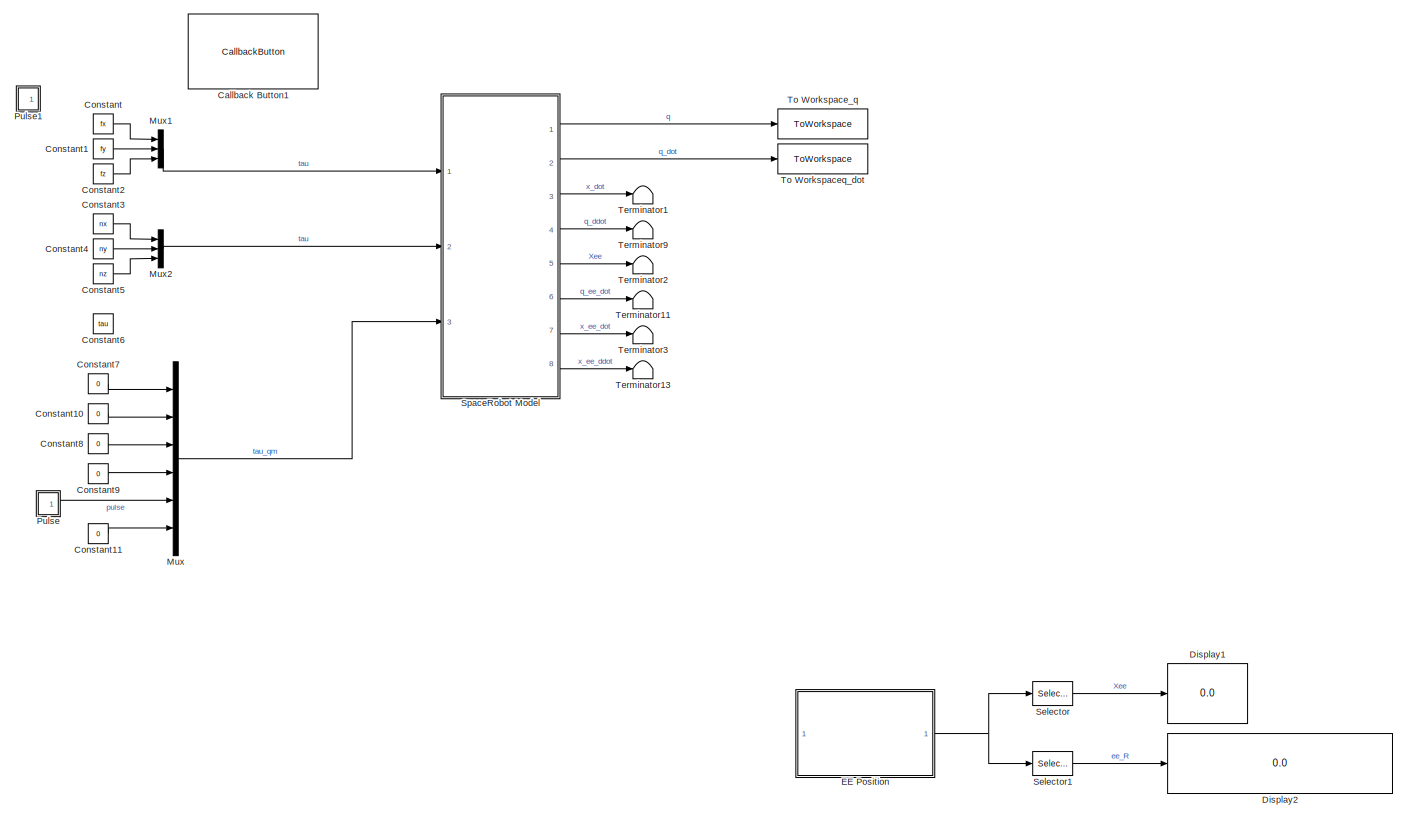
[diagram: root canvas - part 1/1, most of the canvas]
MODEL slx_0baa3ab157ea
KIND model
CONFIG AbsTol = auto
CONFIG EnableMultiTasking = off
CONFIG FixedStep = 0.01
CONFIG MaxStep = auto
CONFIG MinStep = auto
CONFIG RelTol = 1e-3
CONFIG SampleTimeConstraint = Unconstrained
CONFIG SolverName = ode45
CONFIG StartTime = 0.0
CONFIG StopTime = 10.0
BLOCK [CallbackButton] Callback Button1
  ButtonText = Animate results
  ClickFcn = close all\nsr.animate(out.q, 'fps', 17, 'rate', 1);
BLOCK [Constant] Constant
  Value = fx
BLOCK [Constant] Constant1
  Value = fy
BLOCK [Constant] Constant10
  Value = 0
BLOCK [Constant] Constant11
  Value = 0
BLOCK [Constant] Constant2
  Value = fz
BLOCK [Constant] Constant3
  Value = nx
BLOCK [Constant] Constant4
  Value = ny
BLOCK [Constant] Constant5
  Value = nz
BLOCK [Constant] Constant6
  Value = tau
BLOCK [Constant] Constant7
  Value = 0
BLOCK [Constant] Constant8
  Value = 0
BLOCK [Constant] Constant9
  Value = 0
BLOCK [Display] Display1
  Commented = on
  Decimation = 1
  Ports = [1]
BLOCK [Display] Display2
  Commented = on
  Decimation = 1
  Ports = [1]
BLOCK [SubSystem] EE Position
  Commented = on
  Ports = [1, 1]
  ReferencedSubsystem = GetTransform
  RequestExecContextInheritance = off
  SimulateUsing = Interpreted execution
  sourceBody = endeffector
  spaceRobot = sr
  targetBody = inertial
BLOCK [Mux] Mux
  DisplayOption = bar
  Inputs = 6
  Ports = [6, 1]
BLOCK [Mux] Mux1
  DisplayOption = bar
  Inputs = 3
  Ports = [3, 1]
BLOCK [Mux] Mux2
  DisplayOption = bar
  Inputs = 3
  Ports = [3, 1]
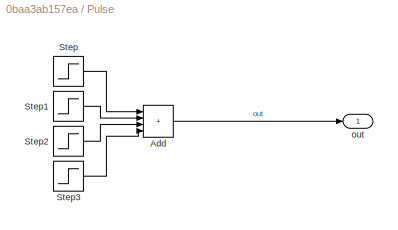
BLOCK [SubSystem] Pulse
  Ports = [0, 1]
  RequestExecContextInheritance = off
BLOCK [Sum] Pulse/Add
  IconShape = rectangular
  Inputs = ++++
  Ports = [4, 1]
BLOCK [Step] Pulse/Step
  After = f
  SampleTime = 0
  Time = t_start
BLOCK [Step] Pulse/Step1
  After = -f
  SampleTime = 0
  Time = t_start+dt
BLOCK [Step] Pulse/Step2
  After = -f
  SampleTime = 0
  Time = t_start+2*dt
BLOCK [Step] Pulse/Step3
  After = f
  SampleTime = 0
  Time = t_start+3*dt
BLOCK [Outport] Pulse/out
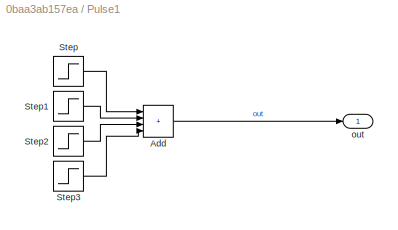
BLOCK [SubSystem] Pulse1
  Ports = [0, 1]
  RequestExecContextInheritance = off
BLOCK [Sum] Pulse1/Add
  IconShape = rectangular
  Inputs = ++++
  Ports = [4, 1]
BLOCK [Step] Pulse1/Step
  After = f
  SampleTime = 0
  Time = t_start
BLOCK [Step] Pulse1/Step1
  After = -f
  SampleTime = 0
  Time = t_start+dt
BLOCK [Step] Pulse1/Step2
  After = -f
  SampleTime = 0
  Time = t_start+2*dt
BLOCK [Step] Pulse1/Step3
  After = f
  SampleTime = 0
  Time = t_start+3*dt
BLOCK [Outport] Pulse1/out
BLOCK [Selector] Selector
  Commented = on
  IndexOptions = Index vector (dialog),Index vector (dialog)
  Indices = [1:3],4
  InputPortWidth = [4 4]
  NumberOfDimensions = 2
  OutputSizes = 1,1
  Ports = [1, 1]
BLOCK [Selector] Selector1
  Commented = on
  IndexOptions = Index vector (dialog),Index vector (dialog)
  Indices = [1:3],[1:3]
  InputPortWidth = [4 4]
  NumberOfDimensions = 2
  OutputSizes = 1,1
  Ports = [1, 1]
BLOCK [SubSystem] SpaceRobot Model
  Ports = [3, 8]
  ReferencedSubsystem = SpaceRobot_Model
  RequestExecContextInheritance = off
  jointCstr = off
  q_0 = q0
  q_dot_0 = q_dot_0
  spaceRobot = sr
BLOCK [Terminator] Terminator1
BLOCK [Terminator] Terminator11
BLOCK [Terminator] Terminator13
BLOCK [Terminator] Terminator2
BLOCK [Terminator] Terminator3
BLOCK [Terminator] Terminator9
BLOCK [ToWorkspace] To Workspace_q
  FixptAsFi = on
  MaxDataPoints = inf
  Ports = [1]
  SampleTime = -1
  SaveFormat = Timeseries
  VariableName = q
BLOCK [ToWorkspace] To Workspaceq_dot
  FixptAsFi = on
  MaxDataPoints = inf
  Ports = [1]
  SampleTime = -1
  SaveFormat = Timeseries
  VariableName = q_dot
LINE Constant10:1 -> Mux:2
LINE Constant11:1 -> Mux:6
LINE Constant1:1 -> Mux1:2
LINE Constant2:1 -> Mux1:3
LINE Constant3:1 -> Mux2:1
LINE Constant4:1 -> Mux2:2
LINE Constant5:1 -> Mux2:3
LINE Constant7:1 -> Mux:1
LINE Constant8:1 -> Mux:3
LINE Constant9:1 -> Mux:4
LINE Constant:1 -> Mux1:1
NET EE Position:1 -> Selector1:1, Selector:1
LINE Mux1:1 -> SpaceRobot Model:1
LINE Mux2:1 -> SpaceRobot Model:2
LINE Mux:1 -> SpaceRobot Model:3
LINE Pulse/Add:1 -> Pulse/out:1
LINE Pulse/Step1:1 -> Pulse/Add:2
LINE Pulse/Step2:1 -> Pulse/Add:3
LINE Pulse/Step3:1 -> Pulse/Add:4
LINE Pulse/Step:1 -> Pulse/Add:1
LINE Pulse1/Add:1 -> Pulse1/out:1
LINE Pulse1/Step1:1 -> Pulse1/Add:2
LINE Pulse1/Step2:1 -> Pulse1/Add:3
LINE Pulse1/Step3:1 -> Pulse1/Add:4
LINE Pulse1/Step:1 -> Pulse1/Add:1
LINE Pulse:1 -> Mux:5
LINE Selector1:1 -> Display2:1
LINE Selector:1 -> Display1:1
LINE SpaceRobot Model:1 -> To Workspace_q:1
LINE SpaceRobot Model:2 -> To Workspaceq_dot:1
LINE SpaceRobot Model:3 -> Terminator1:1
LINE SpaceRobot Model:4 -> Terminator9:1
LINE SpaceRobot Model:5 -> Terminator2:1
LINE SpaceRobot Model:6 -> Terminator11:1
LINE SpaceRobot Model:7 -> Terminator3:1
LINE SpaceRobot Model:8 -> Terminator13:1
note: NET lines group one-source signal fan-out (src -> all destinations, sorted); 1:1 wires keep LINE
